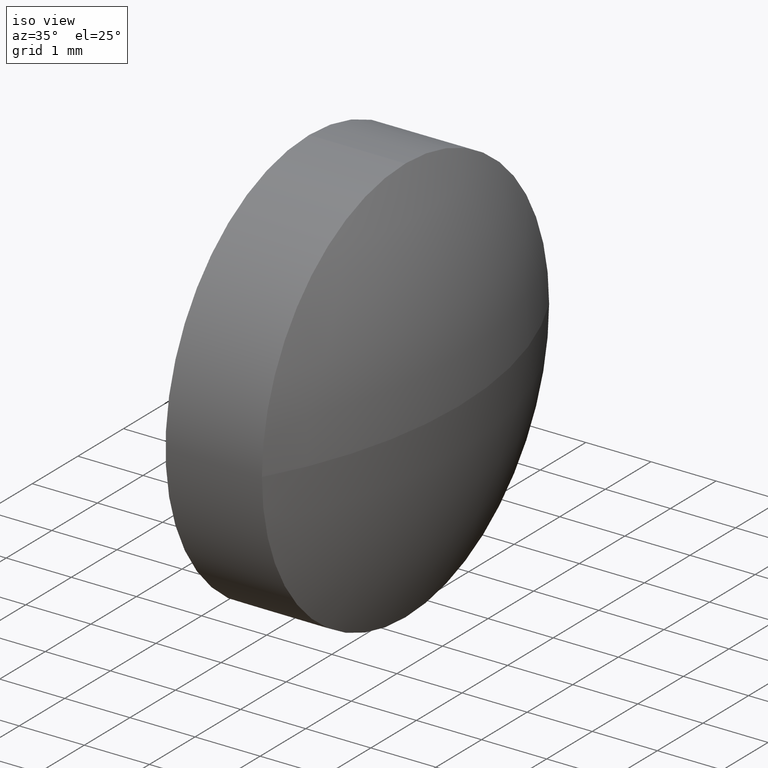
[diagram: clean part render]
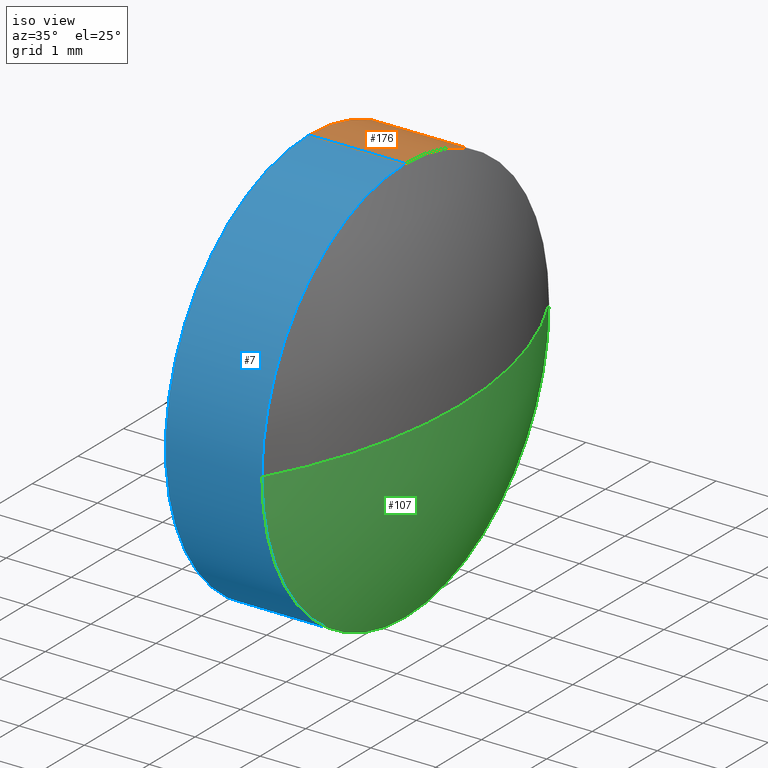
[diagram: same view with three faces highlighted in distinct colors, each labeled with its STEP entity id]
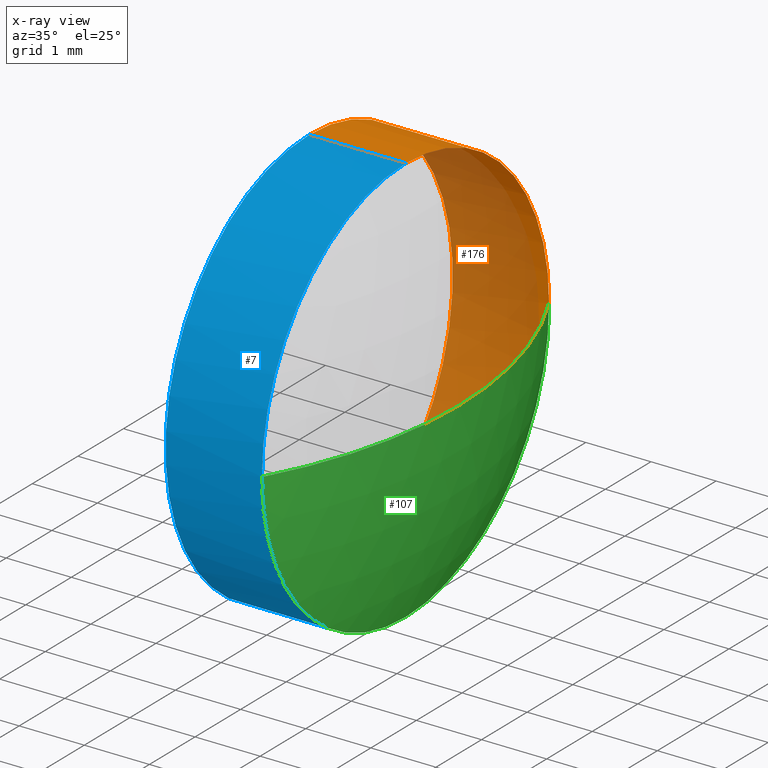
[diagram: x-ray of the same camera — body ghosted, the three highlighted faces saturated]
A machine part, iso view with three faces highlighted in distinct colors.
The next image is the same camera in x-ray (body ghosted, the three faces saturated) — at least one of them is partly hidden behind the body in this view.
Their STEP definitions:

[orange] entity #176 — the highlighted cylindrical surface (partial cylindrical patch) has radius 3.15 mm, axis along (-1, -0, -0).
#6 = ORIENTED_EDGE ( 'NONE', *, *, #165, .T. ) ;
#8 = ORIENTED_EDGE ( 'NONE', *, *, #123, .F. ) ;
#9 = CYLINDRICAL_SURFACE ( 'NONE', #89, 3.150000000000003500 ) ;
#10 = ORIENTED_EDGE ( 'NONE', *, *, #36, .T. ) ;
#16 = DIRECTION ( 'NONE',  ( 0.0000000000000000000, 0.0000000000000000000, 1.000000000000000000 ) ) ;
#23 = EDGE_CURVE ( 'NONE', #99, #98, #93, .T. ) ;
#24 = ORIENTED_EDGE ( 'NONE', *, *, #91, .F. ) ;
#28 = DIRECTION ( 'NONE',  ( -1.000000000000000000, -0.0000000000000000000, -0.0000000000000000000 ) ) ;
#36 = EDGE_CURVE ( 'NONE', #98, #124, #105, .T. ) ;
#42 = DIRECTION ( 'NONE',  ( 0.0000000000000000000, 0.0000000000000000000, 1.000000000000000000 ) ) ;
#43 = CARTESIAN_POINT ( 'NONE',  ( 452.8172646101707000, 11.19250467615683000, -3.150000000000003500 ) ) ;
#46 = CARTESIAN_POINT ( 'NONE',  ( 454.2972646101707100, 14.34250467615682500, 0.0000000000000000000 ) ) ;
#57 = CARTESIAN_POINT ( 'NONE',  ( 452.0115541976288100, 11.19250467615683000, -3.150000000000003500 ) ) ;
#58 = VERTEX_POINT ( 'NONE', #103 ) ;
#60 = CARTESIAN_POINT ( 'NONE',  ( 454.2972646101707100, 11.19250467615683000, -3.150000000000003500 ) ) ;
#61 = CARTESIAN_POINT ( 'NONE',  ( 452.0115541976288100, 11.19250467615683000, 0.0000000000000000000 ) ) ;
#63 = CIRCLE ( 'NONE', #125, 3.150000000000003500 ) ;
#64 = DIRECTION ( 'NONE',  ( -1.000000000000000000, -0.0000000000000000000, -0.0000000000000000000 ) ) ;
#65 = AXIS2_PLACEMENT_3D ( 'NONE', #186, #64, #120 ) ;
#67 = AXIS2_PLACEMENT_3D ( 'NONE', #113, #28, #42 ) ;
#76 = CARTESIAN_POINT ( 'NONE',  ( 454.2972646101707100, 11.19250467615683000, 3.150000000000003500 ) ) ;
#83 = FACE_OUTER_BOUND ( 'NONE', #131, .T. ) ;
#88 = VECTOR ( 'NONE', #181, 1000.000000000000000 ) ;
#89 = AXIS2_PLACEMENT_3D ( 'NONE', #61, #158, #16 ) ;
#91 = EDGE_CURVE ( 'NONE', #58, #124, #63, .T. ) ;
#93 = CIRCLE ( 'NONE', #67, 3.150000000000003500 ) ;
#98 = VERTEX_POINT ( 'NONE', #60 ) ;
#99 = VERTEX_POINT ( 'NONE', #46 ) ;
#103 = CARTESIAN_POINT ( 'NONE',  ( 452.8172646101707000, 11.19250467615683000, 3.150000000000003500 ) ) ;
#105 = LINE ( 'NONE', #57, #88 ) ;
#113 = CARTESIAN_POINT ( 'NONE',  ( 454.2972646101707100, 11.19250467615683000, 0.0000000000000000000 ) ) ;
#119 = ORIENTED_EDGE ( 'NONE', *, *, #23, .T. ) ;
#120 = DIRECTION ( 'NONE',  ( 0.0000000000000000000, 0.0000000000000000000, 1.000000000000000000 ) ) ;
#123 = EDGE_CURVE ( 'NONE', #152, #58, #177, .T. ) ;
#124 = VERTEX_POINT ( 'NONE', #43 ) ;
#125 = AXIS2_PLACEMENT_3D ( 'NONE', #172, #135, #162 ) ;
#131 = EDGE_LOOP ( 'NONE', ( #119, #10, #24, #8, #6 ) ) ;
#133 = DIRECTION ( 'NONE',  ( -1.000000000000000000, -0.0000000000000000000, -0.0000000000000000000 ) ) ;
#134 = CARTESIAN_POINT ( 'NONE',  ( 452.0115541976288100, 11.19250467615683000, 3.150000000000003500 ) ) ;
#135 = DIRECTION ( 'NONE',  ( -1.000000000000000000, -0.0000000000000000000, -0.0000000000000000000 ) ) ;
#142 = CIRCLE ( 'NONE', #65, 3.150000000000003500 ) ;
#152 = VERTEX_POINT ( 'NONE', #76 ) ;
#158 = DIRECTION ( 'NONE',  ( -1.000000000000000000, -0.0000000000000000000, -0.0000000000000000000 ) ) ;
#162 = DIRECTION ( 'NONE',  ( 0.0000000000000000000, 0.0000000000000000000, 1.000000000000000000 ) ) ;
#165 = EDGE_CURVE ( 'NONE', #152, #99, #142, .T. ) ;
#169 = VECTOR ( 'NONE', #133, 1000.000000000000000 ) ;
#172 = CARTESIAN_POINT ( 'NONE',  ( 452.8172646101707000, 11.19250467615683000, 0.0000000000000000000 ) ) ;
#176 = ADVANCED_FACE ( 'NONE', ( #83 ), #9, .T. ) ;
#177 = LINE ( 'NONE', #134, #169 ) ;
#181 = DIRECTION ( 'NONE',  ( -1.000000000000000000, -0.0000000000000000000, -0.0000000000000000000 ) ) ;
#186 = CARTESIAN_POINT ( 'NONE',  ( 454.2972646101707100, 11.19250467615683000, 0.0000000000000000000 ) ) ;

[blue] entity #7 — the highlighted cylindrical surface (partial cylindrical patch) has radius 3.15 mm, axis along (-1, -0, -0).
#7 = ADVANCED_FACE ( 'NONE', ( #147 ), #69, .T. ) ;
#14 = CIRCLE ( 'NONE', #174, 3.150000000000003500 ) ;
#26 = ORIENTED_EDGE ( 'NONE', *, *, #30, .T. ) ;
#27 = DIRECTION ( 'NONE',  ( -1.000000000000000000, -0.0000000000000000000, -0.0000000000000000000 ) ) ;
#30 = EDGE_CURVE ( 'NONE', #98, #179, #94, .T. ) ;
#32 = DIRECTION ( 'NONE',  ( -1.000000000000000000, -0.0000000000000000000, -0.0000000000000000000 ) ) ;
#36 = EDGE_CURVE ( 'NONE', #98, #124, #105, .T. ) ;
#37 = ORIENTED_EDGE ( 'NONE', *, *, #123, .T. ) ;
#39 = DIRECTION ( 'NONE',  ( 0.0000000000000000000, 0.0000000000000000000, 1.000000000000000000 ) ) ;
#40 = AXIS2_PLACEMENT_3D ( 'NONE', #50, #32, #173 ) ;
#43 = CARTESIAN_POINT ( 'NONE',  ( 452.8172646101707000, 11.19250467615683000, -3.150000000000003500 ) ) ;
#45 = ORIENTED_EDGE ( 'NONE', *, *, #126, .F. ) ;
#48 = EDGE_CURVE ( 'NONE', #179, #152, #14, .T. ) ;
#50 = CARTESIAN_POINT ( 'NONE',  ( 452.8172646101707000, 11.19250467615683000, 0.0000000000000000000 ) ) ;
#57 = CARTESIAN_POINT ( 'NONE',  ( 452.0115541976288100, 11.19250467615683000, -3.150000000000003500 ) ) ;
#58 = VERTEX_POINT ( 'NONE', #103 ) ;
#59 = DIRECTION ( 'NONE',  ( -1.000000000000000000, -0.0000000000000000000, -0.0000000000000000000 ) ) ;
#60 = CARTESIAN_POINT ( 'NONE',  ( 454.2972646101707100, 11.19250467615683000, -3.150000000000003500 ) ) ;
#66 = ORIENTED_EDGE ( 'NONE', *, *, #48, .T. ) ;
#69 = CYLINDRICAL_SURFACE ( 'NONE', #154, 3.150000000000003500 ) ;
#76 = CARTESIAN_POINT ( 'NONE',  ( 454.2972646101707100, 11.19250467615683000, 3.150000000000003500 ) ) ;
#88 = VECTOR ( 'NONE', #181, 1000.000000000000000 ) ;
#94 = CIRCLE ( 'NONE', #111, 3.150000000000003500 ) ;
#98 = VERTEX_POINT ( 'NONE', #60 ) ;
#101 = CARTESIAN_POINT ( 'NONE',  ( 454.2972646101707100, 11.19250467615683000, 0.0000000000000000000 ) ) ;
#103 = CARTESIAN_POINT ( 'NONE',  ( 452.8172646101707000, 11.19250467615683000, 3.150000000000003500 ) ) ;
#105 = LINE ( 'NONE', #57, #88 ) ;
#108 = CIRCLE ( 'NONE', #40, 3.150000000000003500 ) ;
#111 = AXIS2_PLACEMENT_3D ( 'NONE', #101, #59, #39 ) ;
#123 = EDGE_CURVE ( 'NONE', #152, #58, #177, .T. ) ;
#124 = VERTEX_POINT ( 'NONE', #43 ) ;
#126 = EDGE_CURVE ( 'NONE', #124, #58, #108, .T. ) ;
#132 = CARTESIAN_POINT ( 'NONE',  ( 452.0115541976288100, 11.19250467615683000, 0.0000000000000000000 ) ) ;
#133 = DIRECTION ( 'NONE',  ( -1.000000000000000000, -0.0000000000000000000, -0.0000000000000000000 ) ) ;
#134 = CARTESIAN_POINT ( 'NONE',  ( 452.0115541976288100, 11.19250467615683000, 3.150000000000003500 ) ) ;
#138 = EDGE_LOOP ( 'NONE', ( #164, #26, #66, #37, #45 ) ) ;
#144 = DIRECTION ( 'NONE',  ( -1.000000000000000000, -0.0000000000000000000, -0.0000000000000000000 ) ) ;
#147 = FACE_OUTER_BOUND ( 'NONE', #138, .T. ) ;
#152 = VERTEX_POINT ( 'NONE', #76 ) ;
#154 = AXIS2_PLACEMENT_3D ( 'NONE', #132, #144, #182 ) ;
#164 = ORIENTED_EDGE ( 'NONE', *, *, #36, .F. ) ;
#169 = VECTOR ( 'NONE', #133, 1000.000000000000000 ) ;
#170 = CARTESIAN_POINT ( 'NONE',  ( 454.2972646101707100, 11.19250467615683000, 0.0000000000000000000 ) ) ;
#173 = DIRECTION ( 'NONE',  ( 0.0000000000000000000, 0.0000000000000000000, 1.000000000000000000 ) ) ;
#174 = AXIS2_PLACEMENT_3D ( 'NONE', #170, #27, #180 ) ;
#177 = LINE ( 'NONE', #134, #169 ) ;
#178 = CARTESIAN_POINT ( 'NONE',  ( 454.2972646101707100, 8.042504676156809800, -3.857637417314155300E-016 ) ) ;
#179 = VERTEX_POINT ( 'NONE', #178 ) ;
#180 = DIRECTION ( 'NONE',  ( 0.0000000000000000000, 0.0000000000000000000, 1.000000000000000000 ) ) ;
#181 = DIRECTION ( 'NONE',  ( -1.000000000000000000, -0.0000000000000000000, -0.0000000000000000000 ) ) ;
#182 = DIRECTION ( 'NONE',  ( 0.0000000000000000000, 0.0000000000000000000, 1.000000000000000000 ) ) ;

[green] entity #107 — the highlighted spherical surface has radius 6.4603 mm.
#5 = EDGE_CURVE ( 'NONE', #141, #179, #73, .T. ) ;
#17 = ORIENTED_EDGE ( 'NONE', *, *, #5, .T. ) ;
#23 = EDGE_CURVE ( 'NONE', #99, #98, #93, .T. ) ;
#28 = DIRECTION ( 'NONE',  ( -1.000000000000000000, -0.0000000000000000000, -0.0000000000000000000 ) ) ;
#30 = EDGE_CURVE ( 'NONE', #98, #179, #94, .T. ) ;
#39 = DIRECTION ( 'NONE',  ( 0.0000000000000000000, 0.0000000000000000000, 1.000000000000000000 ) ) ;
#42 = DIRECTION ( 'NONE',  ( 0.0000000000000000000, 0.0000000000000000000, 1.000000000000000000 ) ) ;
#46 = CARTESIAN_POINT ( 'NONE',  ( 454.2972646101707100, 14.34250467615682500, 0.0000000000000000000 ) ) ;
#47 = CARTESIAN_POINT ( 'NONE',  ( 455.1172646101707100, 11.19250467615680300, 0.0000000000000000000 ) ) ;
#49 = DIRECTION ( 'NONE',  ( 0.0000000000000000000, 1.000000000000000000, 0.0000000000000000000 ) ) ;
#52 = SPHERICAL_SURFACE ( 'NONE', #78, 6.460304878048838800 ) ;
#53 = AXIS2_PLACEMENT_3D ( 'NONE', #148, #149, #104 ) ;
#56 = ORIENTED_EDGE ( 'NONE', *, *, #140, .F. ) ;
#59 = DIRECTION ( 'NONE',  ( -1.000000000000000000, -0.0000000000000000000, -0.0000000000000000000 ) ) ;
#60 = CARTESIAN_POINT ( 'NONE',  ( 454.2972646101707100, 11.19250467615683000, -3.150000000000003500 ) ) ;
#67 = AXIS2_PLACEMENT_3D ( 'NONE', #113, #28, #42 ) ;
#71 = DIRECTION ( 'NONE',  ( 0.0000000000000000000, 1.000000000000000000, 1.224646799147353200E-016 ) ) ;
#73 = CIRCLE ( 'NONE', #145, 6.460304878048838800 ) ;
#78 = AXIS2_PLACEMENT_3D ( 'NONE', #175, #87, #49 ) ;
#81 = DIRECTION ( 'NONE',  ( 0.0000000000000000000, 1.224646799147353200E-016, -1.000000000000000000 ) ) ;
#87 = DIRECTION ( 'NONE',  ( -0.0000000000000000000, 0.0000000000000000000, -1.000000000000000000 ) ) ;
#90 = ORIENTED_EDGE ( 'NONE', *, *, #30, .F. ) ;
#93 = CIRCLE ( 'NONE', #67, 3.150000000000003500 ) ;
#94 = CIRCLE ( 'NONE', #111, 3.150000000000003500 ) ;
#96 = CARTESIAN_POINT ( 'NONE',  ( 448.6569597321218900, 11.19250467615680300, 0.0000000000000000000 ) ) ;
#98 = VERTEX_POINT ( 'NONE', #60 ) ;
#99 = VERTEX_POINT ( 'NONE', #46 ) ;
#101 = CARTESIAN_POINT ( 'NONE',  ( 454.2972646101707100, 11.19250467615683000, 0.0000000000000000000 ) ) ;
#104 = DIRECTION ( 'NONE',  ( 1.000000000000000000, 0.0000000000000000000, 0.0000000000000000000 ) ) ;
#107 = ADVANCED_FACE ( 'NONE', ( #163 ), #52, .T. ) ;
#109 = ORIENTED_EDGE ( 'NONE', *, *, #23, .F. ) ;
#111 = AXIS2_PLACEMENT_3D ( 'NONE', #101, #59, #39 ) ;
#112 = EDGE_LOOP ( 'NONE', ( #56, #17, #90, #109 ) ) ;
#113 = CARTESIAN_POINT ( 'NONE',  ( 454.2972646101707100, 11.19250467615683000, 0.0000000000000000000 ) ) ;
#139 = CIRCLE ( 'NONE', #53, 6.460304878048828100 ) ;
#140 = EDGE_CURVE ( 'NONE', #141, #99, #139, .T. ) ;
#141 = VERTEX_POINT ( 'NONE', #47 ) ;
#145 = AXIS2_PLACEMENT_3D ( 'NONE', #96, #81, #71 ) ;
#148 = CARTESIAN_POINT ( 'NONE',  ( 448.6569597321218900, 11.19250467615680300, 0.0000000000000000000 ) ) ;
#149 = DIRECTION ( 'NONE',  ( -0.0000000000000000000, 0.0000000000000000000, 1.000000000000000000 ) ) ;
#163 = FACE_OUTER_BOUND ( 'NONE', #112, .T. ) ;
#175 = CARTESIAN_POINT ( 'NONE',  ( 448.6569597321218900, 11.19250467615680300, 0.0000000000000000000 ) ) ;
#178 = CARTESIAN_POINT ( 'NONE',  ( 454.2972646101707100, 8.042504676156809800, -3.857637417314155300E-016 ) ) ;
#179 = VERTEX_POINT ( 'NONE', #178 ) ;